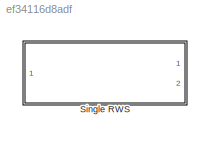
MODEL slx_ef34116d8adf
KIND library
CONFIG AbsTol = auto
CONFIG EnableMultiTasking = off
CONFIG FixedStep = auto
CONFIG MaxStep = auto
CONFIG MinStep = auto
CONFIG RelTol = 1e-3
CONFIG SampleTimeConstraint = Unconstrained
CONFIG Solver = ode45
CONFIG SolverName = ode45
CONFIG StartTime = 0.0
CONFIG StopTime = 10.0
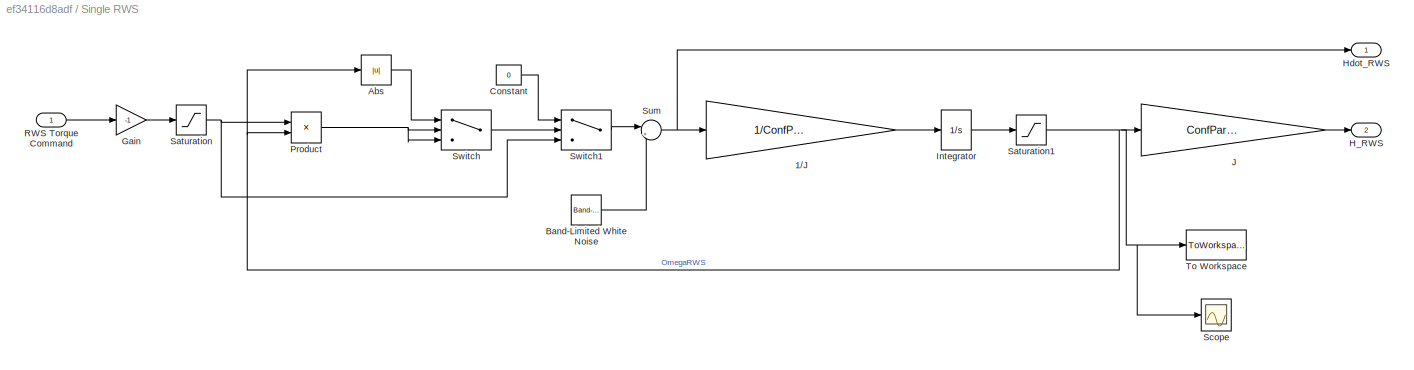
BLOCK [SubSystem] Single RWS
  Ports = [1, 2]
  RequestExecContextInheritance = off
BLOCK [Gain] Single RWS/1//J
  Gain = 1/ConfParam.confRWS.I_RWS
  OutDataTypeStr = Inherit: Inherit via internal rule
  ParamDataTypeStr = Inherit: Inherit via internal rule
  SaturateOnIntegerOverflow = off
BLOCK [Abs] Single RWS/Abs
  SaturateOnIntegerOverflow = off
BLOCK [Reference] Single RWS/Band-Limited White Noise  REF=simulink/Sources/Band-Limited
White Noise
  Ports = [0, 1]
  SourceBlock = simulink/Sources/Band-Limited\nWhite Noise
  SourceProductBaseCode = SL
  SourceProductName = Simulink
  SourceType = Band-Limited White Noise.
BLOCK [Constant] Single RWS/Constant
  Value = 0
BLOCK [Gain] Single RWS/Gain
  Gain = -1
  OutDataTypeStr = Inherit: Inherit via internal rule
  ParamDataTypeStr = Inherit: Inherit via internal rule
  SaturateOnIntegerOverflow = off
BLOCK [Outport] Single RWS/H_RWS
  IconDisplay = Port number
  Port = 2
BLOCK [Outport] Single RWS/Hdot_RWS
  IconDisplay = Port number
BLOCK [Integrator] Single RWS/Integrator
  InitialCondition = ConfParam.confRWS.IntitOmegaRWS(1)
  Ports = [1, 1]
BLOCK [Gain] Single RWS/J
  Gain = ConfParam.confRWS.I_RWS
  OutDataTypeStr = Inherit: Inherit via internal rule
  ParamDataTypeStr = Inherit: Inherit via internal rule
  SaturateOnIntegerOverflow = off
BLOCK [Product] Single RWS/Product
  InputSameDT = off
  OutDataTypeStr = Inherit: Inherit via internal rule
  Ports = [2, 1]
  RndMeth = Floor
  SaturateOnIntegerOverflow = off
BLOCK [Inport] Single RWS/RWS Torque Command
  IconDisplay = Port number
BLOCK [Saturate] Single RWS/Saturation
  InputPortMap = u0
  LowerLimit = -ConfParam.confRWS.Tmax
  Ports = [1, 1]
  UpperLimit = ConfParam.confRWS.Tmax
BLOCK [Saturate] Single RWS/Saturation1
  InputPortMap = u0
  LowerLimit = -ConfParam.confRWS.OmegaMax
  Ports = [1, 1]
  UpperLimit = ConfParam.confRWS.OmegaMax
BLOCK [Scope] Single RWS/Scope
  Floating = off
  NumInputPorts = 1
  Ports = [1]
  ScopeSpecificationString = Simulink.scopes.TimeScopeBlockCfg('CurrentConfiguration', extmgr.ConfigurationSet(extmgr.Configuration('Core','General UI',true),extmgr.Configuration('Core','Source UI',true),extmgr.Configuration('Sources','WiredSimulink',true),extmgr.Configuration('Visuals','Time Domain',true),extmgr.Configuration('Tools','Plot Navigation',true),extmgr.Configuration('Tools','Measurements',true)),'Version','2018a'...<+1ch>
BLOCK [Sum] Single RWS/Sum
  IconShape = round
  InputSameDT = off
  Inputs = |++
  OutDataTypeStr = Inherit: Inherit via internal rule
  Ports = [2, 1]
  SaturateOnIntegerOverflow = off
BLOCK [Switch] Single RWS/Switch
  Criteria = u2 > Threshold
  InputSameDT = off
  SaturateOnIntegerOverflow = off
BLOCK [Switch] Single RWS/Switch1
  InputSameDT = off
  SaturateOnIntegerOverflow = off
  Threshold = ConfParam.confRWS.OmegaMax
BLOCK [ToWorkspace] Single RWS/To Workspace
  FixptAsFi = on
  MaxDataPoints = inf
  Ports = [1]
  SampleTime = -1
  Save2DSignal = 3-D array (concatenate along third dimension)
  VariableName = rw1_omega
LINE Single RWS/1//J:1 -> Single RWS/Integrator:1
LINE Single RWS/Abs:1 -> Single RWS/Switch:1
LINE Single RWS/Band-Limited White Noise:1 -> Single RWS/Sum:2
LINE Single RWS/Constant:1 -> Single RWS/Switch1:1
LINE Single RWS/Gain:1 -> Single RWS/Saturation:1
LINE Single RWS/Integrator:1 -> Single RWS/Saturation1:1
LINE Single RWS/J:1 -> Single RWS/H_RWS:1
NET Single RWS/Product:1 -> Single RWS/Switch:2, Single RWS/Switch:3
LINE Single RWS/RWS Torque Command:1 -> Single RWS/Gain:1
NET Single RWS/Saturation1:1 -> Single RWS/Abs:1, Single RWS/J:1, Single RWS/Product:2, Single RWS/Scope:1, Single RWS/To Workspace:1
NET Single RWS/Saturation:1 -> Single RWS/Product:1, Single RWS/Switch1:3
NET Single RWS/Sum:1 -> Single RWS/1//J:1, Single RWS/Hdot_RWS:1
LINE Single RWS/Switch1:1 -> Single RWS/Sum:1
LINE Single RWS/Switch:1 -> Single RWS/Switch1:2
note: NET lines group one-source signal fan-out (src -> all destinations, sorted); 1:1 wires keep LINE
